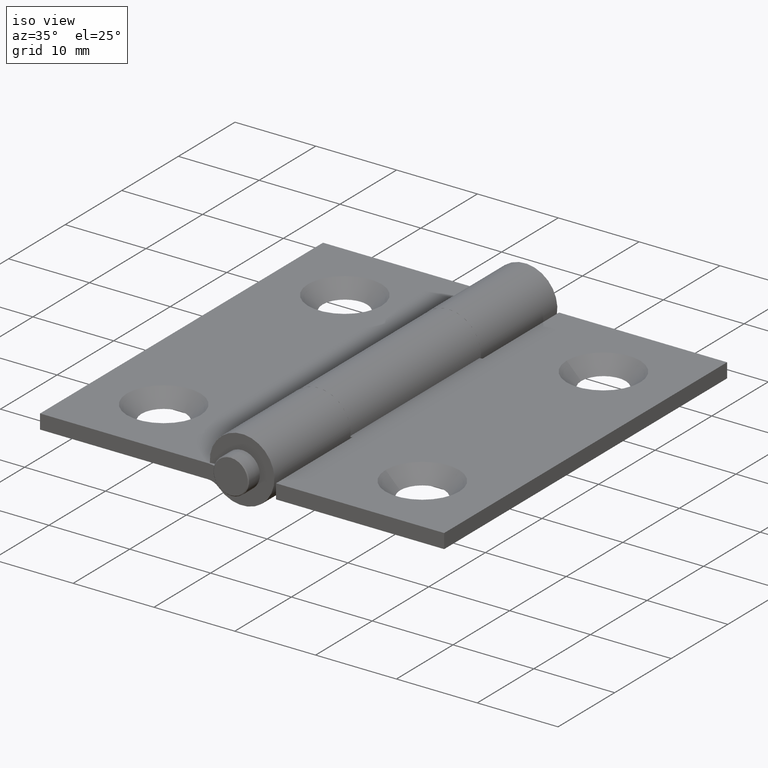
[diagram: clean part render]
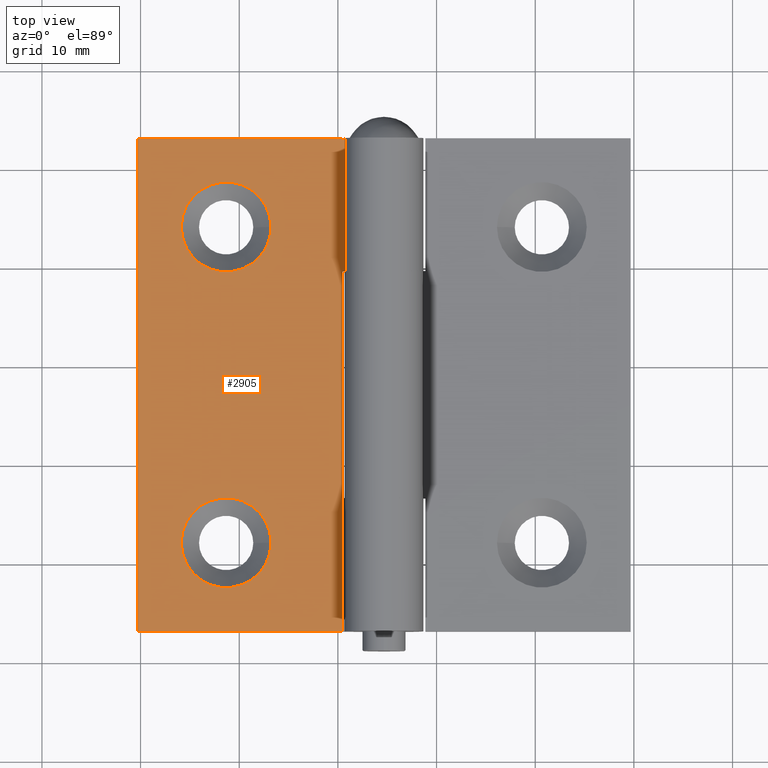
[diagram: tour spotlight — one face highlighted and labeled with its STEP entity id]
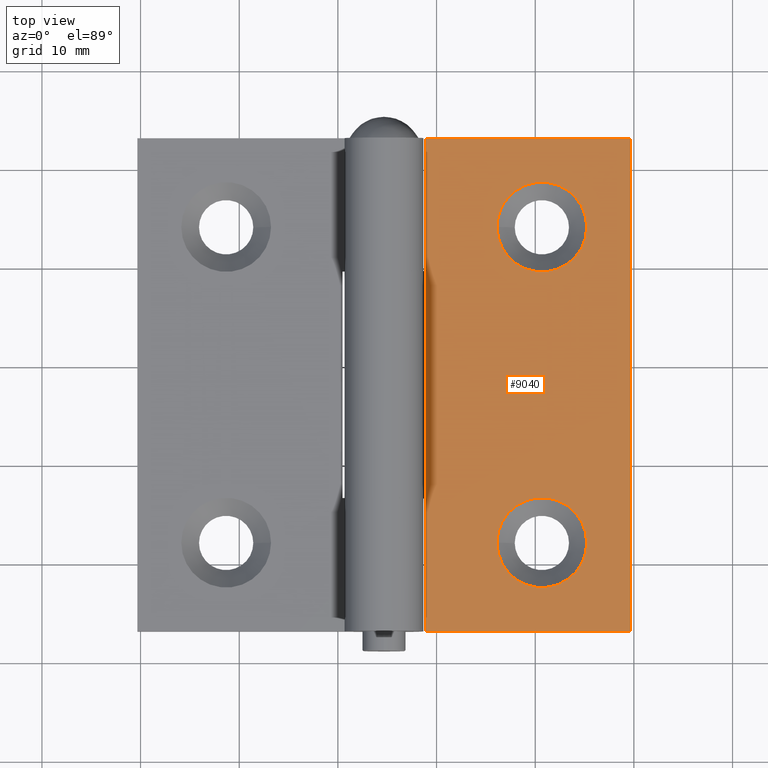
[diagram: tour spotlight — one face highlighted and labeled with its STEP entity id]
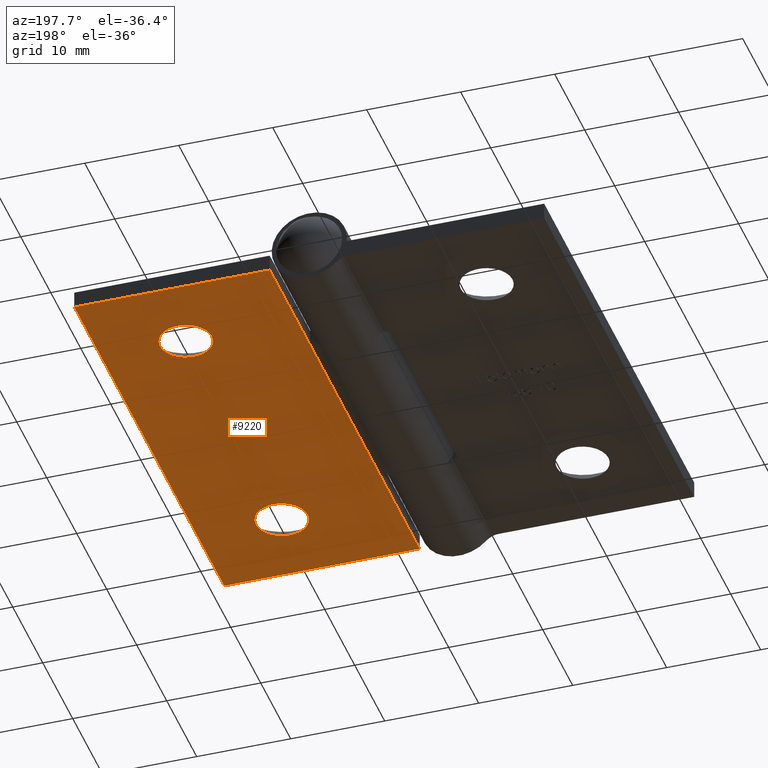
[diagram: tour spotlight — one face highlighted and labeled with its STEP entity id]
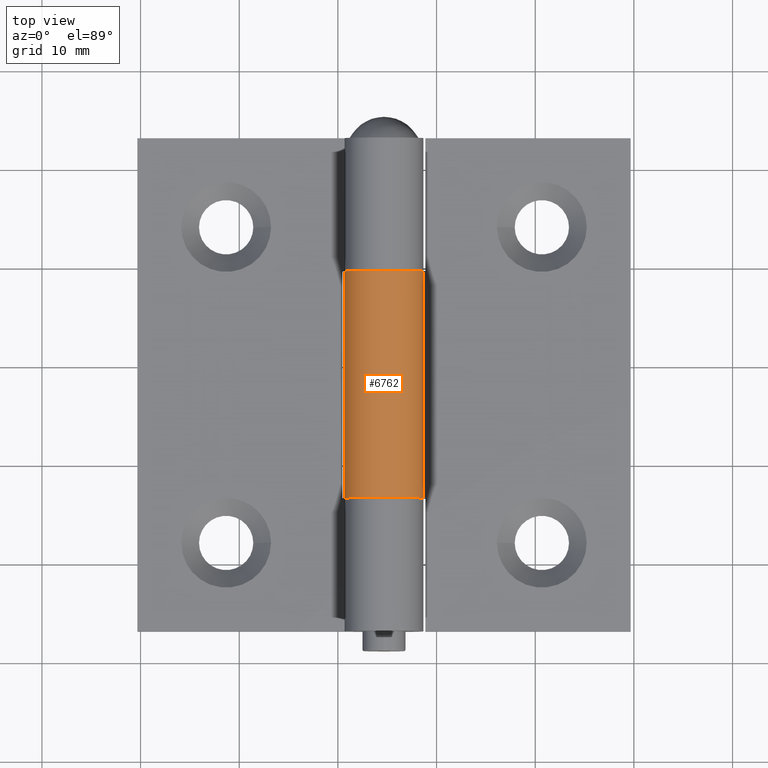
[diagram: tour spotlight — one face highlighted and labeled with its STEP entity id]
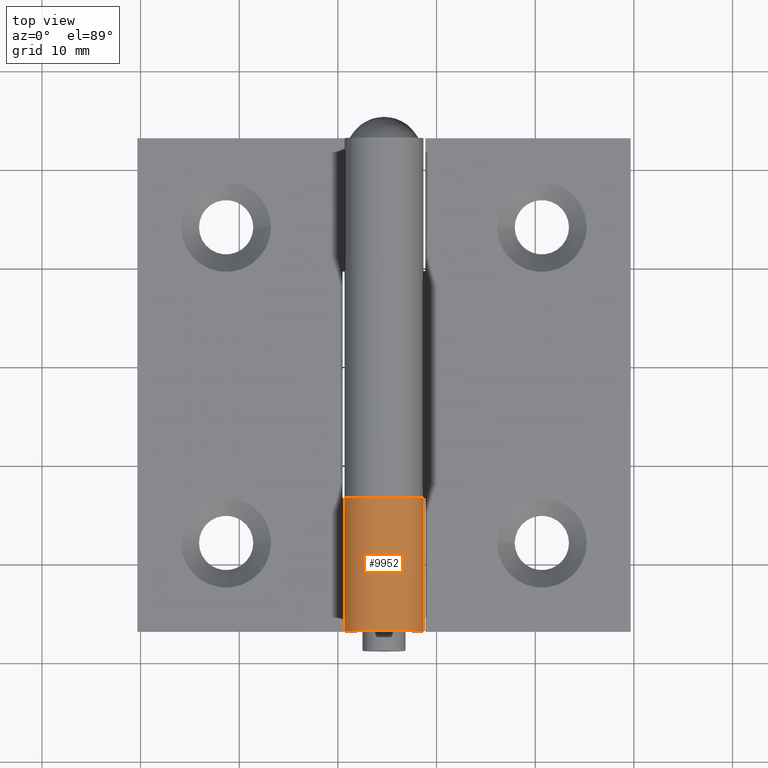
[diagram: tour spotlight — one face highlighted and labeled with its STEP entity id]
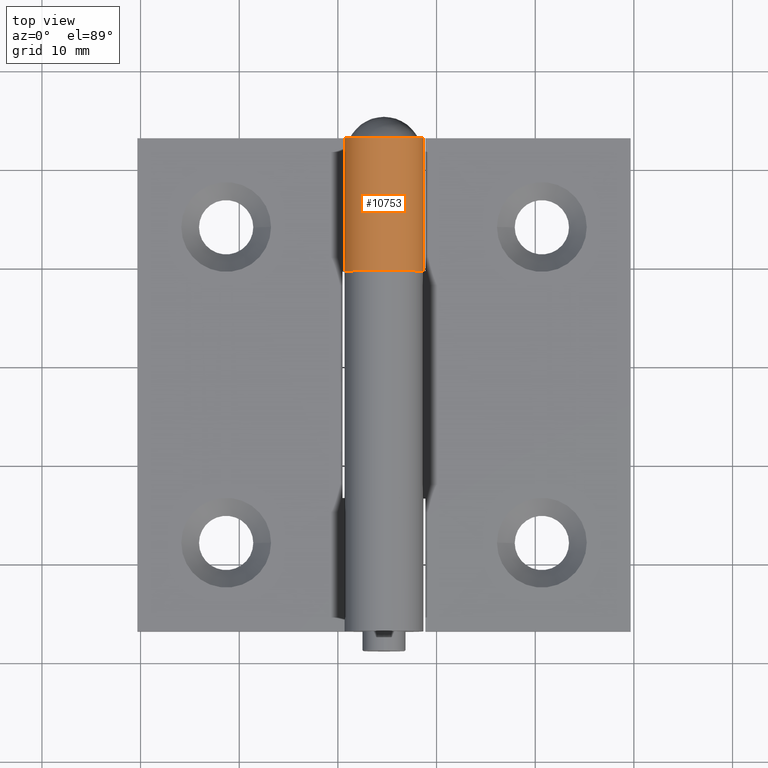
[diagram: tour spotlight — one face highlighted and labeled with its STEP entity id]
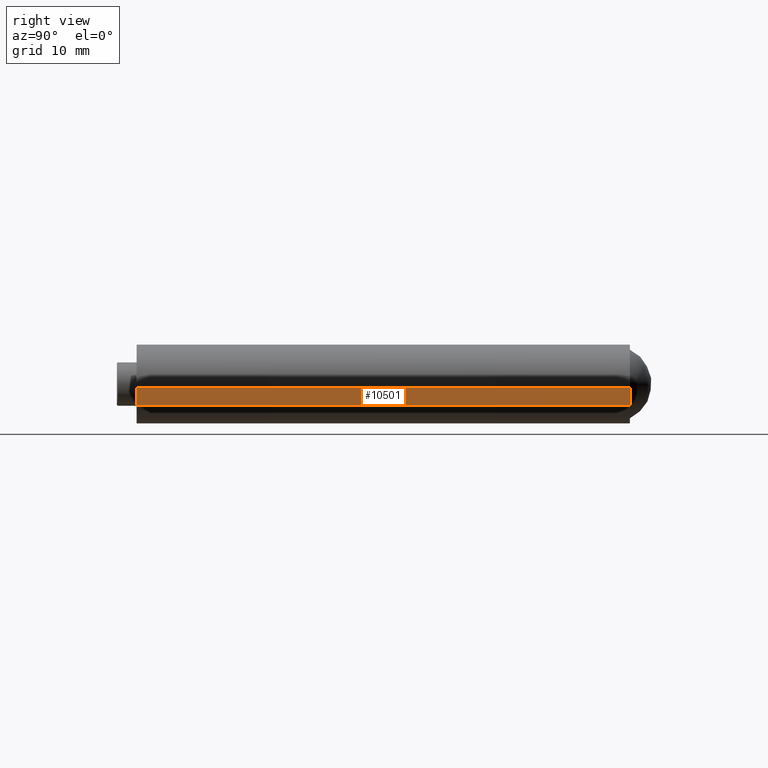
[diagram: tour spotlight — one face highlighted and labeled with its STEP entity id]
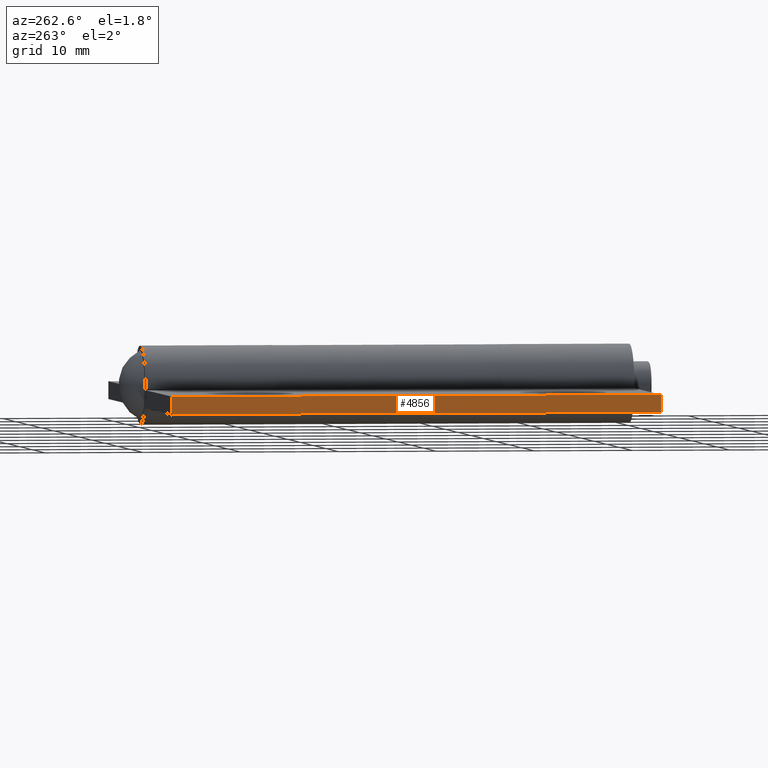
[diagram: tour spotlight — one face highlighted and labeled with its STEP entity id]
A machine part: a face-by-face anatomy tour. The part has 227 B-rep faces; the first image is the clean iso view, then the 8 largest visible faces are spotlighted one at a time (largest first), each with its STEP entity span.

Face 1 — top view, entity #2905. In plain terms, the highlighted planar face has unit normal (0, 0, -1).
Definition (entity closure, byte-faithful):
#46 = ORIENTED_EDGE ( 'NONE', *, *, #3403, .F. ) ;
#297 = ORIENTED_EDGE ( 'NONE', *, *, #6430, .F. ) ;
#315 = EDGE_CURVE ( 'NONE', #10197, #10197, #6631, .T. ) ;
#390 = VECTOR ( 'NONE', #6060, 1000.000000000000000 ) ;
#654 = CARTESIAN_POINT ( 'NONE',  ( -16.00000000000000711, 15.99999999999999645, -0.4000000000000001887 ) ) ;
#779 = AXIS2_PLACEMENT_3D ( 'NONE', #654, #6920, #9665 ) ;
#843 = DIRECTION ( 'NONE',  ( -1.000000000000000000, 0.000000000000000000, -0.000000000000000000 ) ) ;
#1008 = CARTESIAN_POINT ( 'NONE',  ( -4.199999999999996625, 25.00000000000000000, -0.4000000000000001887 ) ) ;
#1039 = CIRCLE ( 'NONE', #779, 4.549999999999998934 ) ;
#1178 = DIRECTION ( 'NONE',  ( 0.000000000000000000, 0.000000000000000000, -1.000000000000000000 ) ) ;
#1330 = ORIENTED_EDGE ( 'NONE', *, *, #6785, .T. ) ;
#1520 = EDGE_CURVE ( 'NONE', #4293, #2267, #6032, .T. ) ;
#1644 = CARTESIAN_POINT ( 'NONE',  ( -4.199999999999996625, 25.00000000000000000, -0.4000000000000001887 ) ) ;
#1751 = CARTESIAN_POINT ( 'NONE',  ( -20.55000000000000071, -16.00000000000000355, -0.4000000000000001887 ) ) ;
#1786 = CARTESIAN_POINT ( 'NONE',  ( -4.199999999999996625, -11.50000000000000000, -0.4000000000000001887 ) ) ;
#1842 = PLANE ( 'NONE',  #4113 ) ;
#1979 = CARTESIAN_POINT ( 'NONE',  ( -25.00000000000000000, 25.00000000000000000, -0.4000000000000001887 ) ) ;
#2155 = CARTESIAN_POINT ( 'NONE',  ( -4.199999999999996625, -25.00000000000000000, -0.4000000000000001887 ) ) ;
#2212 = CARTESIAN_POINT ( 'NONE',  ( -25.00000000000000000, -25.00000000000000000, -0.4000000000000001887 ) ) ;
#2267 = VERTEX_POINT ( 'NONE', #2212 ) ;
#2905 = ADVANCED_FACE ( 'NONE', ( #10881, #5156, #8883 ), #1842, .F. ) ;
#3011 = VERTEX_POINT ( 'NONE', #1786 ) ;
#3205 = ORIENTED_EDGE ( 'NONE', *, *, #11166, .T. ) ;
#3403 = EDGE_CURVE ( 'NONE', #11056, #3011, #6156, .T. ) ;
#3578 = CARTESIAN_POINT ( 'NONE',  ( -25.00000000000000000, -25.00000000000000000, -0.4000000000000001887 ) ) ;
#3585 = ORIENTED_EDGE ( 'NONE', *, *, #315, .T. ) ;
#3627 = CARTESIAN_POINT ( 'NONE',  ( -20.55000000000000426, 15.99999999999999645, -0.4000000000000001887 ) ) ;
#3867 = DIRECTION ( 'NONE',  ( -0.000000000000000000, -1.000000000000000000, -0.000000000000000000 ) ) ;
#3970 = DIRECTION ( 'NONE',  ( -0.000000000000000000, -1.000000000000000000, -0.000000000000000000 ) ) ;
#4113 = AXIS2_PLACEMENT_3D ( 'NONE', #9103, #4519, #843 ) ;
#4274 = EDGE_LOOP ( 'NONE', ( #3585 ) ) ;
#4293 = VERTEX_POINT ( 'NONE', #7913 ) ;
#4315 = EDGE_LOOP ( 'NONE', ( #1330, #5961, #46, #297, #9617, #4362 ) ) ;
#4362 = ORIENTED_EDGE ( 'NONE', *, *, #1520, .T. ) ;
#4519 = DIRECTION ( 'NONE',  ( 0.000000000000000000, 0.000000000000000000, -1.000000000000000000 ) ) ;
#4599 = CARTESIAN_POINT ( 'NONE',  ( -25.00000000000000000, 25.00000000000000000, -0.4000000000000001887 ) ) ;
#4893 = AXIS2_PLACEMENT_3D ( 'NONE', #10391, #1178, #8507 ) ;
#5156 = FACE_BOUND ( 'NONE', #10222, .T. ) ;
#5393 = LINE ( 'NONE', #3578, #5678 ) ;
#5540 = LINE ( 'NONE', #9856, #390 ) ;
#5678 = VECTOR ( 'NONE', #10000, 1000.000000000000000 ) ;
#5690 = LINE ( 'NONE', #1008, #8126 ) ;
#5888 = VERTEX_POINT ( 'NONE', #3627 ) ;
#5961 = ORIENTED_EDGE ( 'NONE', *, *, #6149, .F. ) ;
#6032 = LINE ( 'NONE', #1979, #10466 ) ;
#6060 = DIRECTION ( 'NONE',  ( -0.000000000000000000, -1.000000000000000000, -0.000000000000000000 ) ) ;
#6149 = EDGE_CURVE ( 'NONE', #3011, #9529, #5690, .T. ) ;
#6156 = LINE ( 'NONE', #1644, #10730 ) ;
#6305 = CARTESIAN_POINT ( 'NONE',  ( -4.199999999999996625, 25.00000000000000000, -0.4000000000000001887 ) ) ;
#6430 = EDGE_CURVE ( 'NONE', #7388, #11056, #5540, .T. ) ;
#6631 = CIRCLE ( 'NONE', #4893, 4.549999999999998934 ) ;
#6665 = DIRECTION ( 'NONE',  ( 1.000000000000000000, 0.000000000000000000, 0.000000000000000000 ) ) ;
#6785 = EDGE_CURVE ( 'NONE', #2267, #9529, #5393, .T. ) ;
#6920 = DIRECTION ( 'NONE',  ( 0.000000000000000000, 0.000000000000000000, -1.000000000000000000 ) ) ;
#7184 = DIRECTION ( 'NONE',  ( -0.000000000000000000, -1.000000000000000000, -0.000000000000000000 ) ) ;
#7388 = VERTEX_POINT ( 'NONE', #6305 ) ;
#7913 = CARTESIAN_POINT ( 'NONE',  ( -25.00000000000000000, 25.00000000000000000, -0.4000000000000001887 ) ) ;
#8126 = VECTOR ( 'NONE', #3970, 1000.000000000000000 ) ;
#8507 = DIRECTION ( 'NONE',  ( -1.000000000000000000, 0.000000000000000000, 0.000000000000000000 ) ) ;
#8626 = EDGE_CURVE ( 'NONE', #4293, #7388, #11090, .T. ) ;
#8883 = FACE_OUTER_BOUND ( 'NONE', #4315, .T. ) ;
#9103 = CARTESIAN_POINT ( 'NONE',  ( -25.00000000000000000, 25.00000000000000000, -0.4000000000000001887 ) ) ;
#9508 = VECTOR ( 'NONE', #6665, 1000.000000000000000 ) ;
#9529 = VERTEX_POINT ( 'NONE', #2155 ) ;
#9617 = ORIENTED_EDGE ( 'NONE', *, *, #8626, .F. ) ;
#9665 = DIRECTION ( 'NONE',  ( -1.000000000000000000, 0.000000000000000000, 0.000000000000000000 ) ) ;
#9856 = CARTESIAN_POINT ( 'NONE',  ( -4.199999999999996625, 25.00000000000000000, -0.4000000000000001887 ) ) ;
#10000 = DIRECTION ( 'NONE',  ( 1.000000000000000000, 0.000000000000000000, 0.000000000000000000 ) ) ;
#10197 = VERTEX_POINT ( 'NONE', #1751 ) ;
#10222 = EDGE_LOOP ( 'NONE', ( #3205 ) ) ;
#10391 = CARTESIAN_POINT ( 'NONE',  ( -16.00000000000000355, -16.00000000000000355, -0.4000000000000001887 ) ) ;
#10466 = VECTOR ( 'NONE', #3867, 1000.000000000000000 ) ;
#10730 = VECTOR ( 'NONE', #7184, 1000.000000000000000 ) ;
#10881 = FACE_BOUND ( 'NONE', #4274, .T. ) ;
#11056 = VERTEX_POINT ( 'NONE', #11438 ) ;
#11090 = LINE ( 'NONE', #4599, #9508 ) ;
#11166 = EDGE_CURVE ( 'NONE', #5888, #5888, #1039, .T. ) ;
#11438 = CARTESIAN_POINT ( 'NONE',  ( -4.199999999999996625, 11.50000000000000000, -0.4000000000000001887 ) ) ;

Face 2 — top view, entity #9040. In plain terms, the highlighted planar face has unit normal (-0, 0, -1).
Definition (entity closure, byte-faithful):
#151 = VECTOR ( 'NONE', #7495, 1000.000000000000000 ) ;
#542 = VERTEX_POINT ( 'NONE', #2649 ) ;
#800 = CARTESIAN_POINT ( 'NONE',  ( -4.199999999999996625, 25.00000000000000000, -0.4000000000000001887 ) ) ;
#985 = VECTOR ( 'NONE', #10814, 1000.000000000000000 ) ;
#1060 = ORIENTED_EDGE ( 'NONE', *, *, #1484, .T. ) ;
#1079 = EDGE_LOOP ( 'NONE', ( #3556 ) ) ;
#1447 = DIRECTION ( 'NONE',  ( 0.000000000000000000, 0.000000000000000000, -1.000000000000000000 ) ) ;
#1484 = EDGE_CURVE ( 'NONE', #8877, #542, #2570, .T. ) ;
#1677 = DIRECTION ( 'NONE',  ( -1.000000000000000000, 0.000000000000000000, 0.000000000000000000 ) ) ;
#1777 = FACE_OUTER_BOUND ( 'NONE', #8415, .T. ) ;
#1837 = CIRCLE ( 'NONE', #7673, 4.549999999999998934 ) ;
#1892 = ORIENTED_EDGE ( 'NONE', *, *, #3390, .T. ) ;
#2086 = CARTESIAN_POINT ( 'NONE',  ( -4.199999999999995737, 25.00000000000000000, -0.4000000000000001887 ) ) ;
#2237 = DIRECTION ( 'NONE',  ( 1.000000000000000000, 0.000000000000000000, 0.000000000000000000 ) ) ;
#2329 = ORIENTED_EDGE ( 'NONE', *, *, #7512, .F. ) ;
#2412 = DIRECTION ( 'NONE',  ( 0.000000000000000000, 0.000000000000000000, -1.000000000000000000 ) ) ;
#2570 = LINE ( 'NONE', #10240, #151 ) ;
#2649 = CARTESIAN_POINT ( 'NONE',  ( -4.199999999999996625, -25.00000000000000000, -0.4000000000000001887 ) ) ;
#2707 = VECTOR ( 'NONE', #6379, 1000.000000000000000 ) ;
#2780 = VERTEX_POINT ( 'NONE', #2086 ) ;
#2911 = EDGE_CURVE ( 'NONE', #7156, #542, #6734, .T. ) ;
#2922 = FACE_BOUND ( 'NONE', #1079, .T. ) ;
#3297 = LINE ( 'NONE', #4251, #4565 ) ;
#3390 = EDGE_CURVE ( 'NONE', #3754, #8877, #3297, .T. ) ;
#3452 = EDGE_CURVE ( 'NONE', #2780, #6175, #8296, .T. ) ;
#3469 = EDGE_CURVE ( 'NONE', #4332, #4332, #10444, .T. ) ;
#3533 = EDGE_CURVE ( 'NONE', #6175, #7156, #7892, .T. ) ;
#3556 = ORIENTED_EDGE ( 'NONE', *, *, #4179, .T. ) ;
#3754 = VERTEX_POINT ( 'NONE', #5044 ) ;
#3981 = AXIS2_PLACEMENT_3D ( 'NONE', #11578, #1447, #11544 ) ;
#4012 = CARTESIAN_POINT ( 'NONE',  ( -25.00000000000000000, 25.00000000000000000, -0.4000000000000001887 ) ) ;
#4179 = EDGE_CURVE ( 'NONE', #9197, #9197, #1837, .T. ) ;
#4207 = PLANE ( 'NONE',  #3981 ) ;
#4251 = CARTESIAN_POINT ( 'NONE',  ( -25.00000000000000000, 25.00000000000000000, -0.4000000000000001887 ) ) ;
#4332 = VERTEX_POINT ( 'NONE', #10008 ) ;
#4359 = ORIENTED_EDGE ( 'NONE', *, *, #2911, .F. ) ;
#4408 = CARTESIAN_POINT ( 'NONE',  ( -4.199999999999996625, 25.00000000000000000, -0.4000000000000001887 ) ) ;
#4565 = VECTOR ( 'NONE', #5365, 1000.000000000000000 ) ;
#5012 = CARTESIAN_POINT ( 'NONE',  ( -25.00000000000000000, -25.00000000000000000, -0.4000000000000001887 ) ) ;
#5044 = CARTESIAN_POINT ( 'NONE',  ( -25.00000000000000000, 25.00000000000000000, -0.4000000000000001887 ) ) ;
#5252 = DIRECTION ( 'NONE',  ( -0.000000000000000000, -1.000000000000000000, -0.000000000000000000 ) ) ;
#5365 = DIRECTION ( 'NONE',  ( -0.000000000000000000, -1.000000000000000000, -0.000000000000000000 ) ) ;
#5863 = VECTOR ( 'NONE', #5252, 1000.000000000000000 ) ;
#6175 = VERTEX_POINT ( 'NONE', #7481 ) ;
#6379 = DIRECTION ( 'NONE',  ( 0.000000000000000000, -1.000000000000000000, 0.000000000000000000 ) ) ;
#6680 = ORIENTED_EDGE ( 'NONE', *, *, #3452, .F. ) ;
#6712 = LINE ( 'NONE', #4012, #9830 ) ;
#6734 = LINE ( 'NONE', #7191, #2707 ) ;
#7109 = DIRECTION ( 'NONE',  ( 0.000000000000000000, 0.000000000000000000, -1.000000000000000000 ) ) ;
#7156 = VERTEX_POINT ( 'NONE', #10271 ) ;
#7191 = CARTESIAN_POINT ( 'NONE',  ( -4.199999999999995737, 25.00000000000000000, -0.4000000000000001887 ) ) ;
#7224 = ORIENTED_EDGE ( 'NONE', *, *, #3533, .F. ) ;
#7481 = CARTESIAN_POINT ( 'NONE',  ( -4.199999999999996625, 11.50000000000000000, -0.4000000000000001887 ) ) ;
#7495 = DIRECTION ( 'NONE',  ( 1.000000000000000000, 0.000000000000000000, 0.000000000000000000 ) ) ;
#7512 = EDGE_CURVE ( 'NONE', #3754, #2780, #6712, .T. ) ;
#7572 = AXIS2_PLACEMENT_3D ( 'NONE', #8050, #7109, #1677 ) ;
#7673 = AXIS2_PLACEMENT_3D ( 'NONE', #7990, #2412, #10706 ) ;
#7892 = LINE ( 'NONE', #4408, #985 ) ;
#7990 = CARTESIAN_POINT ( 'NONE',  ( -16.00000000000000355, -16.00000000000000355, -0.4000000000000001887 ) ) ;
#8050 = CARTESIAN_POINT ( 'NONE',  ( -16.00000000000000711, 15.99999999999999645, -0.4000000000000001887 ) ) ;
#8296 = LINE ( 'NONE', #800, #5863 ) ;
#8415 = EDGE_LOOP ( 'NONE', ( #1060, #4359, #7224, #6680, #2329, #1892 ) ) ;
#8877 = VERTEX_POINT ( 'NONE', #5012 ) ;
#8936 = ORIENTED_EDGE ( 'NONE', *, *, #3469, .T. ) ;
#9040 = ADVANCED_FACE ( 'NONE', ( #2922, #10812, #1777 ), #4207, .F. ) ;
#9125 = CARTESIAN_POINT ( 'NONE',  ( -20.55000000000000071, -16.00000000000000355, -0.4000000000000001887 ) ) ;
#9197 = VERTEX_POINT ( 'NONE', #9125 ) ;
#9830 = VECTOR ( 'NONE', #2237, 1000.000000000000000 ) ;
#10008 = CARTESIAN_POINT ( 'NONE',  ( -20.55000000000000426, 15.99999999999999645, -0.4000000000000001887 ) ) ;
#10240 = CARTESIAN_POINT ( 'NONE',  ( -25.00000000000000000, -25.00000000000000000, -0.4000000000000001887 ) ) ;
#10271 = CARTESIAN_POINT ( 'NONE',  ( -4.199999999999996625, -11.50000000000000000, -0.4000000000000001887 ) ) ;
#10372 = EDGE_LOOP ( 'NONE', ( #8936 ) ) ;
#10444 = CIRCLE ( 'NONE', #7572, 4.549999999999998934 ) ;
#10706 = DIRECTION ( 'NONE',  ( -1.000000000000000000, 0.000000000000000000, 0.000000000000000000 ) ) ;
#10812 = FACE_BOUND ( 'NONE', #10372, .T. ) ;
#10814 = DIRECTION ( 'NONE',  ( -0.000000000000000000, -1.000000000000000000, -0.000000000000000000 ) ) ;
#11544 = DIRECTION ( 'NONE',  ( -1.000000000000000000, 0.000000000000000000, -0.000000000000000000 ) ) ;
#11578 = CARTESIAN_POINT ( 'NONE',  ( -25.00000000000000000, 25.00000000000000000, -0.4000000000000001887 ) ) ;

Face 3 — auxiliary view, entity #9220. In plain terms, the highlighted planar face has unit normal (0, 0, 1).
Definition (entity closure, byte-faithful):
#212 = VERTEX_POINT ( 'NONE', #7457 ) ;
#340 = VERTEX_POINT ( 'NONE', #392 ) ;
#392 = CARTESIAN_POINT ( 'NONE',  ( -4.199999999999996625, -11.50000000000000000, -2.200000000000000178 ) ) ;
#562 = EDGE_CURVE ( 'NONE', #212, #340, #8048, .T. ) ;
#832 = CARTESIAN_POINT ( 'NONE',  ( -13.25000000000000533, -16.00000000000000355, -2.200000000000000178 ) ) ;
#919 = DIRECTION ( 'NONE',  ( 1.000000000000000000, 0.000000000000000000, 0.000000000000000000 ) ) ;
#920 = ORIENTED_EDGE ( 'NONE', *, *, #2853, .T. ) ;
#936 = CARTESIAN_POINT ( 'NONE',  ( -25.00000000000000000, 25.00000000000000000, -2.200000000000000178 ) ) ;
#1181 = DIRECTION ( 'NONE',  ( 1.000000000000000000, 0.000000000000000000, -0.000000000000000000 ) ) ;
#1394 = EDGE_CURVE ( 'NONE', #3673, #2593, #9045, .T. ) ;
#1531 = DIRECTION ( 'NONE',  ( 0.000000000000000000, 0.000000000000000000, 1.000000000000000000 ) ) ;
#1602 = VERTEX_POINT ( 'NONE', #832 ) ;
#1662 = CARTESIAN_POINT ( 'NONE',  ( -4.199999999999995737, 25.00000000000000000, -2.200000000000000178 ) ) ;
#1715 = EDGE_CURVE ( 'NONE', #3673, #3647, #7768, .T. ) ;
#1922 = EDGE_LOOP ( 'NONE', ( #3588, #3775, #3780, #3931, #11718, #6400 ) ) ;
#1972 = VECTOR ( 'NONE', #6426, 1000.000000000000000 ) ;
#2593 = VERTEX_POINT ( 'NONE', #936 ) ;
#2853 = EDGE_CURVE ( 'NONE', #11638, #11638, #3865, .T. ) ;
#3017 = PLANE ( 'NONE',  #8907 ) ;
#3323 = EDGE_CURVE ( 'NONE', #1602, #1602, #3999, .T. ) ;
#3405 = CARTESIAN_POINT ( 'NONE',  ( -25.00000000000000000, 25.00000000000000000, -2.200000000000000178 ) ) ;
#3432 = EDGE_CURVE ( 'NONE', #2593, #4482, #5290, .T. ) ;
#3484 = CARTESIAN_POINT ( 'NONE',  ( -16.00000000000000711, 15.99999999999999645, -2.200000000000000178 ) ) ;
#3588 = ORIENTED_EDGE ( 'NONE', *, *, #4452, .T. ) ;
#3647 = VERTEX_POINT ( 'NONE', #10167 ) ;
#3673 = VERTEX_POINT ( 'NONE', #11175 ) ;
#3677 = VECTOR ( 'NONE', #8722, 1000.000000000000000 ) ;
#3775 = ORIENTED_EDGE ( 'NONE', *, *, #3432, .F. ) ;
#3780 = ORIENTED_EDGE ( 'NONE', *, *, #1394, .F. ) ;
#3825 = LINE ( 'NONE', #11414, #3677 ) ;
#3865 = CIRCLE ( 'NONE', #4863, 2.749999999999997335 ) ;
#3912 = CARTESIAN_POINT ( 'NONE',  ( -25.00000000000000000, 25.00000000000000000, -2.200000000000000178 ) ) ;
#3931 = ORIENTED_EDGE ( 'NONE', *, *, #1715, .T. ) ;
#3999 = CIRCLE ( 'NONE', #4738, 2.749999999999999112 ) ;
#4330 = DIRECTION ( 'NONE',  ( -0.000000000000000000, -1.000000000000000000, -0.000000000000000000 ) ) ;
#4452 = EDGE_CURVE ( 'NONE', #212, #4482, #9868, .T. ) ;
#4459 = DIRECTION ( 'NONE',  ( 0.000000000000000000, 1.000000000000000000, 0.000000000000000000 ) ) ;
#4482 = VERTEX_POINT ( 'NONE', #8413 ) ;
#4645 = FACE_BOUND ( 'NONE', #8107, .T. ) ;
#4707 = DIRECTION ( 'NONE',  ( -1.000000000000000000, -0.000000000000000000, -0.000000000000000000 ) ) ;
#4738 = AXIS2_PLACEMENT_3D ( 'NONE', #5936, #1531, #5056 ) ;
#4863 = AXIS2_PLACEMENT_3D ( 'NONE', #3484, #6420, #919 ) ;
#5056 = DIRECTION ( 'NONE',  ( 1.000000000000000000, 0.000000000000000000, 0.000000000000000000 ) ) ;
#5066 = EDGE_LOOP ( 'NONE', ( #920 ) ) ;
#5250 = EDGE_CURVE ( 'NONE', #3647, #340, #3825, .T. ) ;
#5290 = LINE ( 'NONE', #3405, #8581 ) ;
#5936 = CARTESIAN_POINT ( 'NONE',  ( -16.00000000000000355, -16.00000000000000355, -2.200000000000000178 ) ) ;
#6044 = VECTOR ( 'NONE', #4707, 1000.000000000000000 ) ;
#6400 = ORIENTED_EDGE ( 'NONE', *, *, #562, .F. ) ;
#6420 = DIRECTION ( 'NONE',  ( 0.000000000000000000, 0.000000000000000000, 1.000000000000000000 ) ) ;
#6426 = DIRECTION ( 'NONE',  ( -1.000000000000000000, -0.000000000000000000, -0.000000000000000000 ) ) ;
#6586 = CARTESIAN_POINT ( 'NONE',  ( -25.00000000000000000, -25.00000000000000000, -2.200000000000000178 ) ) ;
#6903 = VECTOR ( 'NONE', #11707, 1000.000000000000000 ) ;
#7132 = CARTESIAN_POINT ( 'NONE',  ( -4.199999999999997513, 25.00000000000000000, -2.200000000000000178 ) ) ;
#7240 = FACE_OUTER_BOUND ( 'NONE', #1922, .T. ) ;
#7457 = CARTESIAN_POINT ( 'NONE',  ( -4.199999999999996625, -25.00000000000000000, -2.200000000000000178 ) ) ;
#7581 = DIRECTION ( 'NONE',  ( 0.000000000000000000, 0.000000000000000000, 1.000000000000000000 ) ) ;
#7768 = LINE ( 'NONE', #7132, #6903 ) ;
#8048 = LINE ( 'NONE', #1662, #11342 ) ;
#8107 = EDGE_LOOP ( 'NONE', ( #10868 ) ) ;
#8413 = CARTESIAN_POINT ( 'NONE',  ( -25.00000000000000000, -25.00000000000000000, -2.200000000000000178 ) ) ;
#8581 = VECTOR ( 'NONE', #4330, 1000.000000000000000 ) ;
#8722 = DIRECTION ( 'NONE',  ( -0.000000000000000000, -1.000000000000000000, -0.000000000000000000 ) ) ;
#8907 = AXIS2_PLACEMENT_3D ( 'NONE', #3912, #7581, #1181 ) ;
#9045 = LINE ( 'NONE', #9395, #6044 ) ;
#9220 = ADVANCED_FACE ( 'NONE', ( #4645, #10102, #7240 ), #3017, .F. ) ;
#9395 = CARTESIAN_POINT ( 'NONE',  ( -25.00000000000000000, 25.00000000000000000, -2.200000000000000178 ) ) ;
#9868 = LINE ( 'NONE', #6586, #1972 ) ;
#10102 = FACE_BOUND ( 'NONE', #5066, .T. ) ;
#10167 = CARTESIAN_POINT ( 'NONE',  ( -4.199999999999996625, 11.50000000000000000, -2.200000000000000178 ) ) ;
#10868 = ORIENTED_EDGE ( 'NONE', *, *, #3323, .T. ) ;
#10922 = CARTESIAN_POINT ( 'NONE',  ( -13.25000000000001066, 15.99999999999999645, -2.200000000000000178 ) ) ;
#11175 = CARTESIAN_POINT ( 'NONE',  ( -4.199999999999997513, 25.00000000000000000, -2.200000000000000178 ) ) ;
#11342 = VECTOR ( 'NONE', #4459, 1000.000000000000000 ) ;
#11414 = CARTESIAN_POINT ( 'NONE',  ( -4.199999999999997513, 25.00000000000000000, -2.200000000000000178 ) ) ;
#11638 = VERTEX_POINT ( 'NONE', #10922 ) ;
#11707 = DIRECTION ( 'NONE',  ( -0.000000000000000000, -1.000000000000000000, -0.000000000000000000 ) ) ;
#11718 = ORIENTED_EDGE ( 'NONE', *, *, #5250, .T. ) ;

Face 4 — top view, entity #6762. In plain terms, the highlighted cylindrical surface (partial cylindrical patch) has radius 4 mm, axis along (0, 1, -0).
Definition (entity closure, byte-faithful):
#182 = CARTESIAN_POINT ( 'NONE',  ( -3.988734135035824302, -11.50000000000000355, -0.2999999999999999334 ) ) ;
#248 = VERTEX_POINT ( 'NONE', #6604 ) ;
#534 = VECTOR ( 'NONE', #1532, 1000.000000000000000 ) ;
#1011 = EDGE_CURVE ( 'NONE', #7664, #5399, #9183, .T. ) ;
#1532 = DIRECTION ( 'NONE',  ( -0.000000000000000000, -1.000000000000000000, -0.000000000000000000 ) ) ;
#1563 = DIRECTION ( 'NONE',  ( 0.000000000000000000, 1.000000000000000000, 0.000000000000000000 ) ) ;
#1825 = AXIS2_PLACEMENT_3D ( 'NONE', #5968, #11494, #4040 ) ;
#2018 = VECTOR ( 'NONE', #11656, 1000.000000000000000 ) ;
#2229 = CYLINDRICAL_SURFACE ( 'NONE', #3050, 3.999999999999998224 ) ;
#2365 = ORIENTED_EDGE ( 'NONE', *, *, #6609, .F. ) ;
#2878 = VERTEX_POINT ( 'NONE', #10978 ) ;
#3050 = AXIS2_PLACEMENT_3D ( 'NONE', #11712, #4281, #7968 ) ;
#4040 = DIRECTION ( 'NONE',  ( 0.000000000000000000, 0.000000000000000000, 1.000000000000000000 ) ) ;
#4118 = ORIENTED_EDGE ( 'NONE', *, *, #1011, .T. ) ;
#4281 = DIRECTION ( 'NONE',  ( -0.000000000000000000, -1.000000000000000000, -0.000000000000000000 ) ) ;
#5399 = VERTEX_POINT ( 'NONE', #182 ) ;
#5968 = CARTESIAN_POINT ( 'NONE',  ( 0.000000000000000000, 11.50000000000000000, 0.000000000000000000 ) ) ;
#6371 = EDGE_CURVE ( 'NONE', #2878, #248, #6995, .T. ) ;
#6604 = CARTESIAN_POINT ( 'NONE',  ( -2.896551724137928385, -11.50000000000000355, -2.758620689655172598 ) ) ;
#6609 = EDGE_CURVE ( 'NONE', #7664, #2878, #11836, .T. ) ;
#6699 = EDGE_LOOP ( 'NONE', ( #7549, #7956, #2365, #4118 ) ) ;
#6762 = ADVANCED_FACE ( 'NONE', ( #8838 ), #2229, .T. ) ;
#6995 = LINE ( 'NONE', #8938, #534 ) ;
#7549 = ORIENTED_EDGE ( 'NONE', *, *, #11762, .T. ) ;
#7664 = VERTEX_POINT ( 'NONE', #11587 ) ;
#7956 = ORIENTED_EDGE ( 'NONE', *, *, #6371, .F. ) ;
#7968 = DIRECTION ( 'NONE',  ( 0.000000000000000000, 0.000000000000000000, -1.000000000000000000 ) ) ;
#7973 = DIRECTION ( 'NONE',  ( 0.000000000000000000, 0.000000000000000000, 1.000000000000000000 ) ) ;
#8838 = FACE_OUTER_BOUND ( 'NONE', #6699, .T. ) ;
#8932 = CARTESIAN_POINT ( 'NONE',  ( 0.000000000000000000, -11.50000000000000355, 0.000000000000000000 ) ) ;
#8938 = CARTESIAN_POINT ( 'NONE',  ( -2.896551724137928385, 25.00000000000000000, -2.758620689655172598 ) ) ;
#9048 = CIRCLE ( 'NONE', #10147, 3.999999999999998224 ) ;
#9183 = LINE ( 'NONE', #9817, #2018 ) ;
#9817 = CARTESIAN_POINT ( 'NONE',  ( -3.988734135035824302, 25.00000000000000000, -0.2999999999999999334 ) ) ;
#10147 = AXIS2_PLACEMENT_3D ( 'NONE', #8932, #1563, #7973 ) ;
#10978 = CARTESIAN_POINT ( 'NONE',  ( -2.896551724137928385, 11.50000000000000000, -2.758620689655172598 ) ) ;
#11494 = DIRECTION ( 'NONE',  ( 0.000000000000000000, 1.000000000000000000, 0.000000000000000000 ) ) ;
#11587 = CARTESIAN_POINT ( 'NONE',  ( -3.988734135035824302, 11.50000000000000000, -0.2999999999999999334 ) ) ;
#11656 = DIRECTION ( 'NONE',  ( -0.000000000000000000, -1.000000000000000000, -0.000000000000000000 ) ) ;
#11712 = CARTESIAN_POINT ( 'NONE',  ( 0.000000000000000000, 25.00000000000000000, 0.000000000000000000 ) ) ;
#11762 = EDGE_CURVE ( 'NONE', #5399, #248, #9048, .T. ) ;
#11836 = CIRCLE ( 'NONE', #1825, 3.999999999999998224 ) ;

Face 5 — top view, entity #9952. In plain terms, the highlighted cylindrical surface (partial cylindrical patch) has radius 4 mm, axis along (-0, -1, -0).
Definition (entity closure, byte-faithful):
#433 = CARTESIAN_POINT ( 'NONE',  ( -2.896551724137928385, -25.00000000000000000, -2.758620689655172598 ) ) ;
#1083 = EDGE_CURVE ( 'NONE', #5972, #5487, #10903, .T. ) ;
#2185 = CARTESIAN_POINT ( 'NONE',  ( -3.988734135035824302, 25.00000000000000000, -0.2999999999999999334 ) ) ;
#2199 = LINE ( 'NONE', #4484, #7680 ) ;
#2245 = EDGE_LOOP ( 'NONE', ( #10334, #5890, #7832, #5788 ) ) ;
#2351 = CARTESIAN_POINT ( 'NONE',  ( -2.896551724137928385, -11.50000000000000355, -2.758620689655172598 ) ) ;
#3554 = DIRECTION ( 'NONE',  ( -0.000000000000000000, -1.000000000000000000, -0.000000000000000000 ) ) ;
#3620 = EDGE_CURVE ( 'NONE', #5487, #10700, #8431, .T. ) ;
#4221 = AXIS2_PLACEMENT_3D ( 'NONE', #7306, #4642, #10055 ) ;
#4316 = VECTOR ( 'NONE', #10405, 1000.000000000000000 ) ;
#4484 = CARTESIAN_POINT ( 'NONE',  ( -2.896551724137928385, 25.00000000000000000, -2.758620689655172598 ) ) ;
#4516 = CARTESIAN_POINT ( 'NONE',  ( 0.000000000000000000, -25.00000000000000000, 0.000000000000000000 ) ) ;
#4642 = DIRECTION ( 'NONE',  ( 0.000000000000000000, 1.000000000000000000, 0.000000000000000000 ) ) ;
#4797 = CARTESIAN_POINT ( 'NONE',  ( -3.988734135035824302, -25.00000000000000000, -0.2999999999999999334 ) ) ;
#4962 = AXIS2_PLACEMENT_3D ( 'NONE', #4516, #10928, #9171 ) ;
#4978 = VERTEX_POINT ( 'NONE', #2351 ) ;
#5339 = CARTESIAN_POINT ( 'NONE',  ( 0.000000000000000000, 25.00000000000000000, 0.000000000000000000 ) ) ;
#5487 = VERTEX_POINT ( 'NONE', #4797 ) ;
#5788 = ORIENTED_EDGE ( 'NONE', *, *, #3620, .T. ) ;
#5890 = ORIENTED_EDGE ( 'NONE', *, *, #7864, .F. ) ;
#5972 = VERTEX_POINT ( 'NONE', #9874 ) ;
#7306 = CARTESIAN_POINT ( 'NONE',  ( 0.000000000000000000, -11.50000000000000355, 0.000000000000000000 ) ) ;
#7394 = CIRCLE ( 'NONE', #4221, 3.999999999999998224 ) ;
#7680 = VECTOR ( 'NONE', #3554, 1000.000000000000000 ) ;
#7753 = EDGE_CURVE ( 'NONE', #4978, #10700, #2199, .T. ) ;
#7832 = ORIENTED_EDGE ( 'NONE', *, *, #1083, .T. ) ;
#7864 = EDGE_CURVE ( 'NONE', #5972, #4978, #7394, .T. ) ;
#8431 = CIRCLE ( 'NONE', #4962, 3.999999999999998224 ) ;
#9171 = DIRECTION ( 'NONE',  ( 0.000000000000000000, 0.000000000000000000, 1.000000000000000000 ) ) ;
#9382 = AXIS2_PLACEMENT_3D ( 'NONE', #5339, #11859, #9986 ) ;
#9874 = CARTESIAN_POINT ( 'NONE',  ( -3.988734135035824302, -11.50000000000000355, -0.2999999999999999334 ) ) ;
#9952 = ADVANCED_FACE ( 'NONE', ( #10223 ), #11241, .T. ) ;
#9986 = DIRECTION ( 'NONE',  ( 0.000000000000000000, 0.000000000000000000, -1.000000000000000000 ) ) ;
#10055 = DIRECTION ( 'NONE',  ( 0.000000000000000000, 0.000000000000000000, 1.000000000000000000 ) ) ;
#10223 = FACE_OUTER_BOUND ( 'NONE', #2245, .T. ) ;
#10334 = ORIENTED_EDGE ( 'NONE', *, *, #7753, .F. ) ;
#10405 = DIRECTION ( 'NONE',  ( -0.000000000000000000, -1.000000000000000000, -0.000000000000000000 ) ) ;
#10700 = VERTEX_POINT ( 'NONE', #433 ) ;
#10903 = LINE ( 'NONE', #2185, #4316 ) ;
#10928 = DIRECTION ( 'NONE',  ( 0.000000000000000000, 1.000000000000000000, 0.000000000000000000 ) ) ;
#11241 = CYLINDRICAL_SURFACE ( 'NONE', #9382, 3.999999999999998224 ) ;
#11859 = DIRECTION ( 'NONE',  ( -0.000000000000000000, -1.000000000000000000, -0.000000000000000000 ) ) ;

Face 6 — top view, entity #10753. In plain terms, the highlighted cylindrical surface (partial cylindrical patch) has radius 4 mm, axis along (-0, -1, -0).
Definition (entity closure, byte-faithful):
#742 = VERTEX_POINT ( 'NONE', #2083 ) ;
#897 = FACE_OUTER_BOUND ( 'NONE', #6879, .T. ) ;
#996 = LINE ( 'NONE', #11057, #1579 ) ;
#1579 = VECTOR ( 'NONE', #1844, 1000.000000000000000 ) ;
#1587 = DIRECTION ( 'NONE',  ( 0.000000000000000000, 0.000000000000000000, -1.000000000000000000 ) ) ;
#1618 = CIRCLE ( 'NONE', #4521, 3.999999999999998224 ) ;
#1844 = DIRECTION ( 'NONE',  ( -0.000000000000000000, -1.000000000000000000, -0.000000000000000000 ) ) ;
#1898 = CYLINDRICAL_SURFACE ( 'NONE', #11521, 3.999999999999998224 ) ;
#1927 = ORIENTED_EDGE ( 'NONE', *, *, #2195, .F. ) ;
#2083 = CARTESIAN_POINT ( 'NONE',  ( -3.988734135035824302, 25.00000000000000000, -0.2999999999999999334 ) ) ;
#2195 = EDGE_CURVE ( 'NONE', #4200, #7721, #996, .T. ) ;
#3792 = CARTESIAN_POINT ( 'NONE',  ( 0.000000000000000000, 11.50000000000000000, 0.000000000000000000 ) ) ;
#4174 = VERTEX_POINT ( 'NONE', #10782 ) ;
#4200 = VERTEX_POINT ( 'NONE', #4226 ) ;
#4226 = CARTESIAN_POINT ( 'NONE',  ( -2.896551724137928385, 25.00000000000000000, -2.758620689655172598 ) ) ;
#4521 = AXIS2_PLACEMENT_3D ( 'NONE', #11188, #5848, #5728 ) ;
#5287 = AXIS2_PLACEMENT_3D ( 'NONE', #3792, #10199, #5519 ) ;
#5519 = DIRECTION ( 'NONE',  ( 0.000000000000000000, 0.000000000000000000, 1.000000000000000000 ) ) ;
#5728 = DIRECTION ( 'NONE',  ( 0.000000000000000000, 0.000000000000000000, 1.000000000000000000 ) ) ;
#5765 = EDGE_CURVE ( 'NONE', #4174, #7721, #6268, .T. ) ;
#5848 = DIRECTION ( 'NONE',  ( 0.000000000000000000, 1.000000000000000000, 0.000000000000000000 ) ) ;
#6268 = CIRCLE ( 'NONE', #5287, 3.999999999999998224 ) ;
#6879 = EDGE_LOOP ( 'NONE', ( #10930, #1927, #8860, #11159 ) ) ;
#7088 = DIRECTION ( 'NONE',  ( -0.000000000000000000, -1.000000000000000000, -0.000000000000000000 ) ) ;
#7498 = LINE ( 'NONE', #10969, #8922 ) ;
#7721 = VERTEX_POINT ( 'NONE', #10890 ) ;
#8086 = DIRECTION ( 'NONE',  ( -0.000000000000000000, -1.000000000000000000, -0.000000000000000000 ) ) ;
#8860 = ORIENTED_EDGE ( 'NONE', *, *, #10208, .F. ) ;
#8922 = VECTOR ( 'NONE', #8086, 1000.000000000000000 ) ;
#9881 = CARTESIAN_POINT ( 'NONE',  ( 0.000000000000000000, 25.00000000000000000, 0.000000000000000000 ) ) ;
#10199 = DIRECTION ( 'NONE',  ( 0.000000000000000000, 1.000000000000000000, 0.000000000000000000 ) ) ;
#10208 = EDGE_CURVE ( 'NONE', #742, #4200, #1618, .T. ) ;
#10753 = ADVANCED_FACE ( 'NONE', ( #897 ), #1898, .T. ) ;
#10782 = CARTESIAN_POINT ( 'NONE',  ( -3.988734135035824302, 11.50000000000000000, -0.2999999999999999334 ) ) ;
#10890 = CARTESIAN_POINT ( 'NONE',  ( -2.896551724137928385, 11.50000000000000000, -2.758620689655172598 ) ) ;
#10930 = ORIENTED_EDGE ( 'NONE', *, *, #5765, .T. ) ;
#10969 = CARTESIAN_POINT ( 'NONE',  ( -3.988734135035824302, 25.00000000000000000, -0.2999999999999999334 ) ) ;
#11057 = CARTESIAN_POINT ( 'NONE',  ( -2.896551724137928385, 25.00000000000000000, -2.758620689655172598 ) ) ;
#11159 = ORIENTED_EDGE ( 'NONE', *, *, #11838, .T. ) ;
#11188 = CARTESIAN_POINT ( 'NONE',  ( 0.000000000000000000, 25.00000000000000000, 0.000000000000000000 ) ) ;
#11521 = AXIS2_PLACEMENT_3D ( 'NONE', #9881, #7088, #1587 ) ;
#11838 = EDGE_CURVE ( 'NONE', #742, #4174, #7498, .T. ) ;

Face 7 — right view, entity #10501. In plain terms, the highlighted planar face has unit normal (-1, 0, 0).
Definition (entity closure, byte-faithful):
#162 = DIRECTION ( 'NONE',  ( -0.000000000000000000, -0.000000000000000000, 1.000000000000000000 ) ) ;
#936 = CARTESIAN_POINT ( 'NONE',  ( -25.00000000000000000, 25.00000000000000000, -2.200000000000000178 ) ) ;
#1071 = DIRECTION ( 'NONE',  ( 1.000000000000000000, -0.000000000000000000, 0.000000000000000000 ) ) ;
#1195 = CARTESIAN_POINT ( 'NONE',  ( -25.00000000000000000, -25.00000000000000000, -0.4000000000000001887 ) ) ;
#1311 = LINE ( 'NONE', #1195, #9483 ) ;
#2066 = AXIS2_PLACEMENT_3D ( 'NONE', #4589, #1071, #8321 ) ;
#2324 = EDGE_LOOP ( 'NONE', ( #2781, #7674, #3326, #7999 ) ) ;
#2593 = VERTEX_POINT ( 'NONE', #936 ) ;
#2781 = ORIENTED_EDGE ( 'NONE', *, *, #11461, .T. ) ;
#2795 = DIRECTION ( 'NONE',  ( -0.000000000000000000, -0.000000000000000000, 1.000000000000000000 ) ) ;
#3297 = LINE ( 'NONE', #4251, #4565 ) ;
#3326 = ORIENTED_EDGE ( 'NONE', *, *, #3601, .F. ) ;
#3390 = EDGE_CURVE ( 'NONE', #3754, #8877, #3297, .T. ) ;
#3405 = CARTESIAN_POINT ( 'NONE',  ( -25.00000000000000000, 25.00000000000000000, -2.200000000000000178 ) ) ;
#3432 = EDGE_CURVE ( 'NONE', #2593, #4482, #5290, .T. ) ;
#3601 = EDGE_CURVE ( 'NONE', #2593, #3754, #11869, .T. ) ;
#3754 = VERTEX_POINT ( 'NONE', #5044 ) ;
#4251 = CARTESIAN_POINT ( 'NONE',  ( -25.00000000000000000, 25.00000000000000000, -0.4000000000000001887 ) ) ;
#4330 = DIRECTION ( 'NONE',  ( -0.000000000000000000, -1.000000000000000000, -0.000000000000000000 ) ) ;
#4480 = CARTESIAN_POINT ( 'NONE',  ( -25.00000000000000000, 25.00000000000000000, -0.4000000000000001887 ) ) ;
#4482 = VERTEX_POINT ( 'NONE', #8413 ) ;
#4565 = VECTOR ( 'NONE', #5365, 1000.000000000000000 ) ;
#4589 = CARTESIAN_POINT ( 'NONE',  ( -25.00000000000000000, 25.00000000000000000, -0.4000000000000001887 ) ) ;
#5012 = CARTESIAN_POINT ( 'NONE',  ( -25.00000000000000000, -25.00000000000000000, -0.4000000000000001887 ) ) ;
#5044 = CARTESIAN_POINT ( 'NONE',  ( -25.00000000000000000, 25.00000000000000000, -0.4000000000000001887 ) ) ;
#5290 = LINE ( 'NONE', #3405, #8581 ) ;
#5365 = DIRECTION ( 'NONE',  ( -0.000000000000000000, -1.000000000000000000, -0.000000000000000000 ) ) ;
#7674 = ORIENTED_EDGE ( 'NONE', *, *, #3390, .F. ) ;
#7884 = VECTOR ( 'NONE', #2795, 1000.000000000000000 ) ;
#7999 = ORIENTED_EDGE ( 'NONE', *, *, #3432, .T. ) ;
#8321 = DIRECTION ( 'NONE',  ( 0.000000000000000000, 0.000000000000000000, -1.000000000000000000 ) ) ;
#8413 = CARTESIAN_POINT ( 'NONE',  ( -25.00000000000000000, -25.00000000000000000, -2.200000000000000178 ) ) ;
#8436 = PLANE ( 'NONE',  #2066 ) ;
#8581 = VECTOR ( 'NONE', #4330, 1000.000000000000000 ) ;
#8877 = VERTEX_POINT ( 'NONE', #5012 ) ;
#9082 = FACE_OUTER_BOUND ( 'NONE', #2324, .T. ) ;
#9483 = VECTOR ( 'NONE', #162, 1000.000000000000000 ) ;
#10501 = ADVANCED_FACE ( 'NONE', ( #9082 ), #8436, .F. ) ;
#11461 = EDGE_CURVE ( 'NONE', #4482, #8877, #1311, .T. ) ;
#11869 = LINE ( 'NONE', #4480, #7884 ) ;

Face 8 — auxiliary view, entity #4856. In plain terms, the highlighted planar face has unit normal (1, 0, 0).
Definition (entity closure, byte-faithful):
#94 = ORIENTED_EDGE ( 'NONE', *, *, #9373, .T. ) ;
#325 = ORIENTED_EDGE ( 'NONE', *, *, #1791, .F. ) ;
#349 = LINE ( 'NONE', #11706, #1908 ) ;
#592 = CARTESIAN_POINT ( 'NONE',  ( -25.00000000000000000, 25.00000000000000000, -0.4000000000000001887 ) ) ;
#842 = CARTESIAN_POINT ( 'NONE',  ( -25.00000000000000000, 25.00000000000000000, -2.200000000000000178 ) ) ;
#918 = DIRECTION ( 'NONE',  ( -0.000000000000000000, -1.000000000000000000, -0.000000000000000000 ) ) ;
#1371 = ORIENTED_EDGE ( 'NONE', *, *, #7939, .T. ) ;
#1520 = EDGE_CURVE ( 'NONE', #4293, #2267, #6032, .T. ) ;
#1524 = DIRECTION ( 'NONE',  ( 1.000000000000000000, -0.000000000000000000, 0.000000000000000000 ) ) ;
#1791 = EDGE_CURVE ( 'NONE', #8555, #4293, #3444, .T. ) ;
#1908 = VECTOR ( 'NONE', #8992, 1000.000000000000000 ) ;
#1979 = CARTESIAN_POINT ( 'NONE',  ( -25.00000000000000000, 25.00000000000000000, -0.4000000000000001887 ) ) ;
#2212 = CARTESIAN_POINT ( 'NONE',  ( -25.00000000000000000, -25.00000000000000000, -0.4000000000000001887 ) ) ;
#2267 = VERTEX_POINT ( 'NONE', #2212 ) ;
#3219 = VECTOR ( 'NONE', #918, 1000.000000000000000 ) ;
#3247 = PLANE ( 'NONE',  #9725 ) ;
#3444 = LINE ( 'NONE', #6435, #10891 ) ;
#3867 = DIRECTION ( 'NONE',  ( -0.000000000000000000, -1.000000000000000000, -0.000000000000000000 ) ) ;
#4293 = VERTEX_POINT ( 'NONE', #7913 ) ;
#4856 = ADVANCED_FACE ( 'NONE', ( #7157 ), #3247, .F. ) ;
#5461 = DIRECTION ( 'NONE',  ( -0.000000000000000000, -0.000000000000000000, 1.000000000000000000 ) ) ;
#6032 = LINE ( 'NONE', #1979, #10466 ) ;
#6410 = VERTEX_POINT ( 'NONE', #9734 ) ;
#6435 = CARTESIAN_POINT ( 'NONE',  ( -25.00000000000000000, 25.00000000000000000, -0.4000000000000001887 ) ) ;
#7157 = FACE_OUTER_BOUND ( 'NONE', #8319, .T. ) ;
#7913 = CARTESIAN_POINT ( 'NONE',  ( -25.00000000000000000, 25.00000000000000000, -0.4000000000000001887 ) ) ;
#7939 = EDGE_CURVE ( 'NONE', #8555, #6410, #9809, .T. ) ;
#8319 = EDGE_LOOP ( 'NONE', ( #94, #9538, #325, #1371 ) ) ;
#8555 = VERTEX_POINT ( 'NONE', #10864 ) ;
#8814 = DIRECTION ( 'NONE',  ( 0.000000000000000000, 0.000000000000000000, -1.000000000000000000 ) ) ;
#8992 = DIRECTION ( 'NONE',  ( -0.000000000000000000, -0.000000000000000000, 1.000000000000000000 ) ) ;
#9373 = EDGE_CURVE ( 'NONE', #6410, #2267, #349, .T. ) ;
#9538 = ORIENTED_EDGE ( 'NONE', *, *, #1520, .F. ) ;
#9725 = AXIS2_PLACEMENT_3D ( 'NONE', #592, #1524, #8814 ) ;
#9734 = CARTESIAN_POINT ( 'NONE',  ( -25.00000000000000000, -25.00000000000000000, -2.200000000000000178 ) ) ;
#9809 = LINE ( 'NONE', #842, #3219 ) ;
#10466 = VECTOR ( 'NONE', #3867, 1000.000000000000000 ) ;
#10864 = CARTESIAN_POINT ( 'NONE',  ( -25.00000000000000000, 25.00000000000000000, -2.200000000000000178 ) ) ;
#10891 = VECTOR ( 'NONE', #5461, 1000.000000000000000 ) ;
#11706 = CARTESIAN_POINT ( 'NONE',  ( -25.00000000000000000, -25.00000000000000000, -0.4000000000000001887 ) ) ;